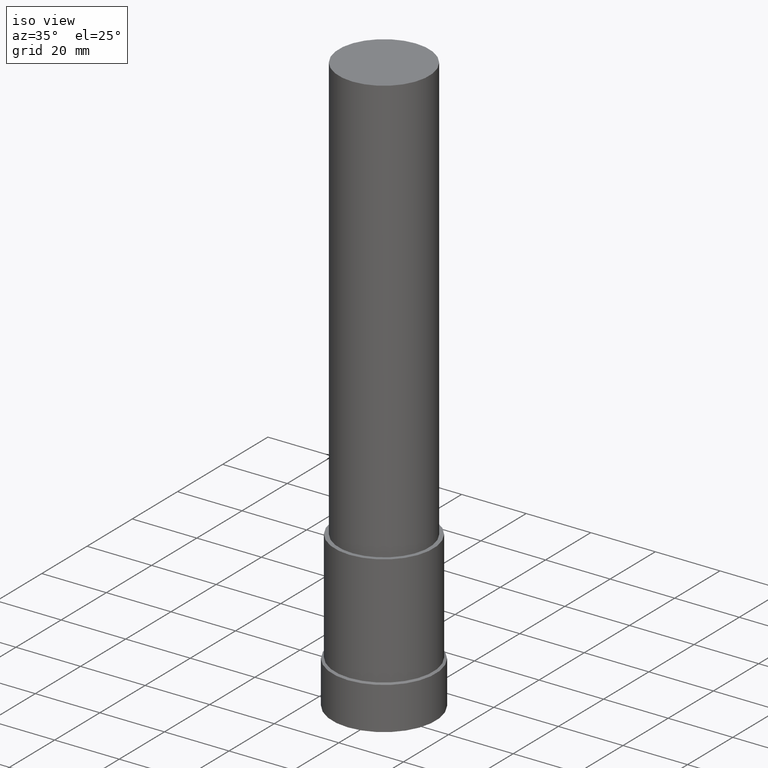
[diagram: clean part render]
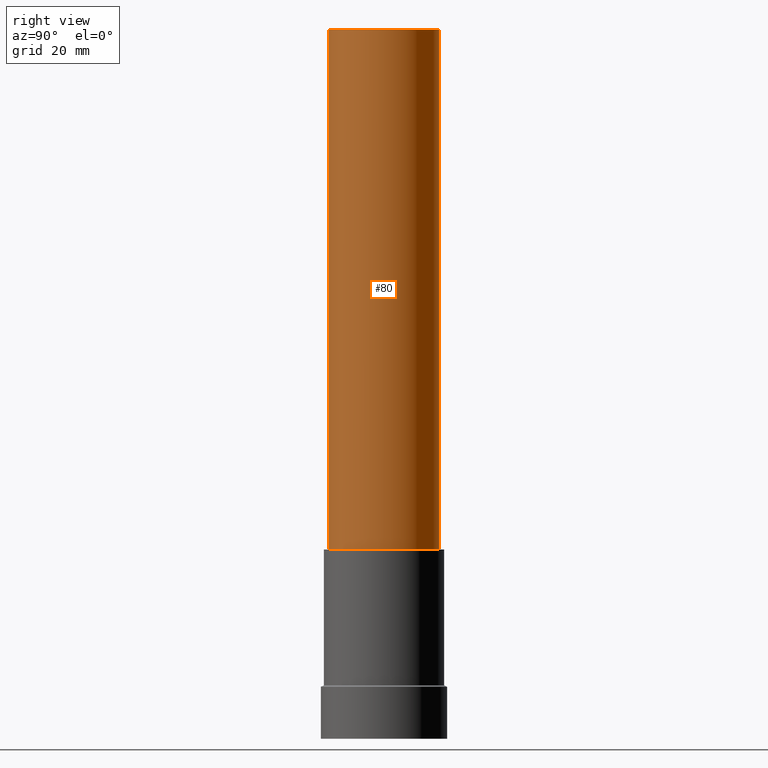
[diagram: tour spotlight — one face highlighted and labeled with its STEP entity id]
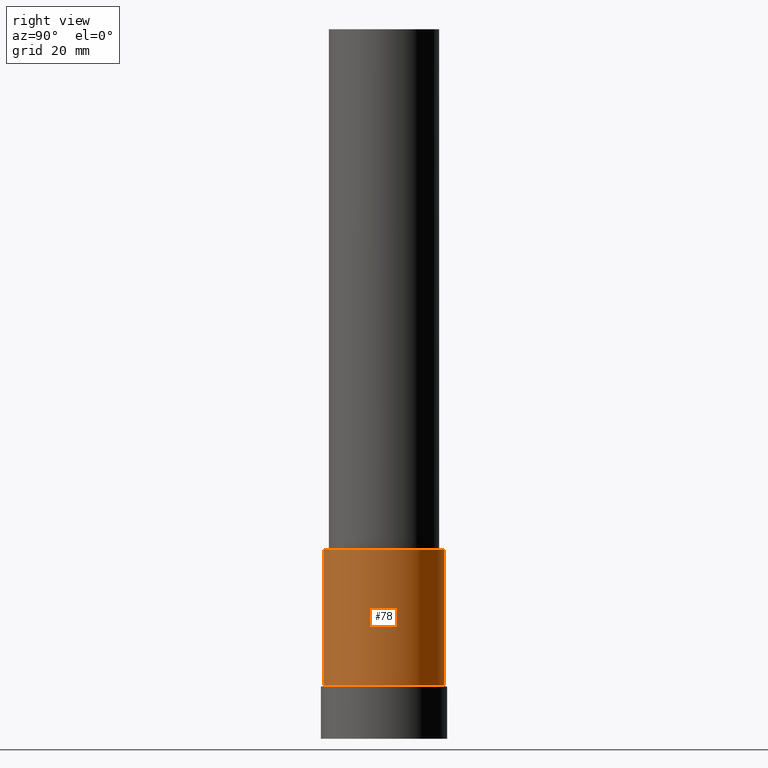
[diagram: tour spotlight — one face highlighted and labeled with its STEP entity id]
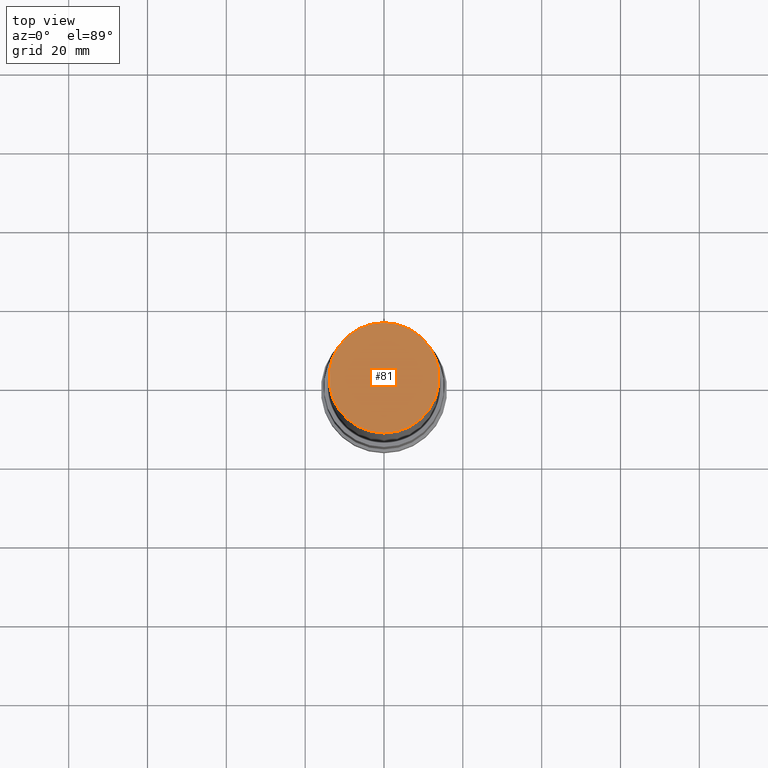
[diagram: tour spotlight — one face highlighted and labeled with its STEP entity id]
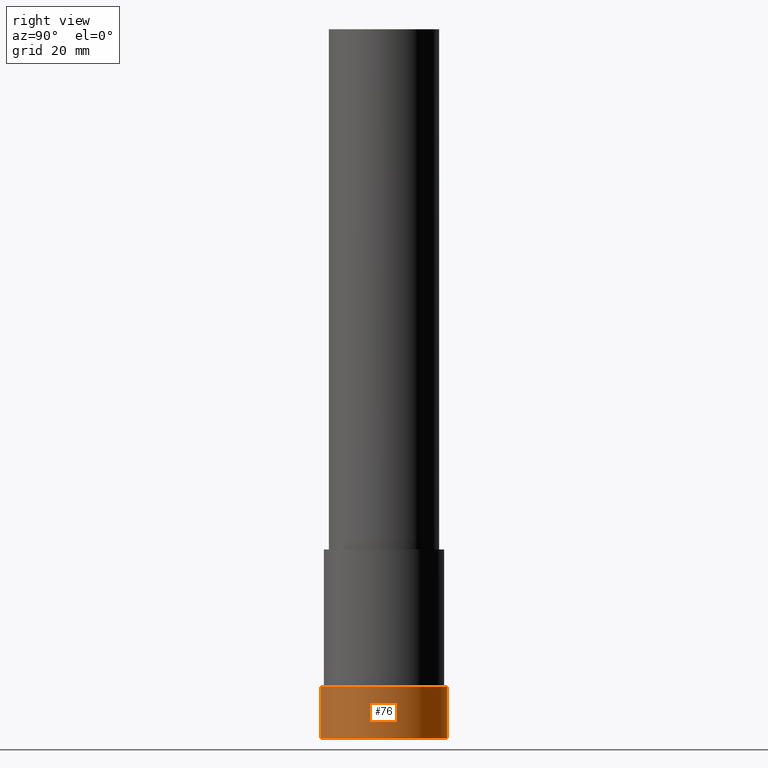
[diagram: tour spotlight — one face highlighted and labeled with its STEP entity id]
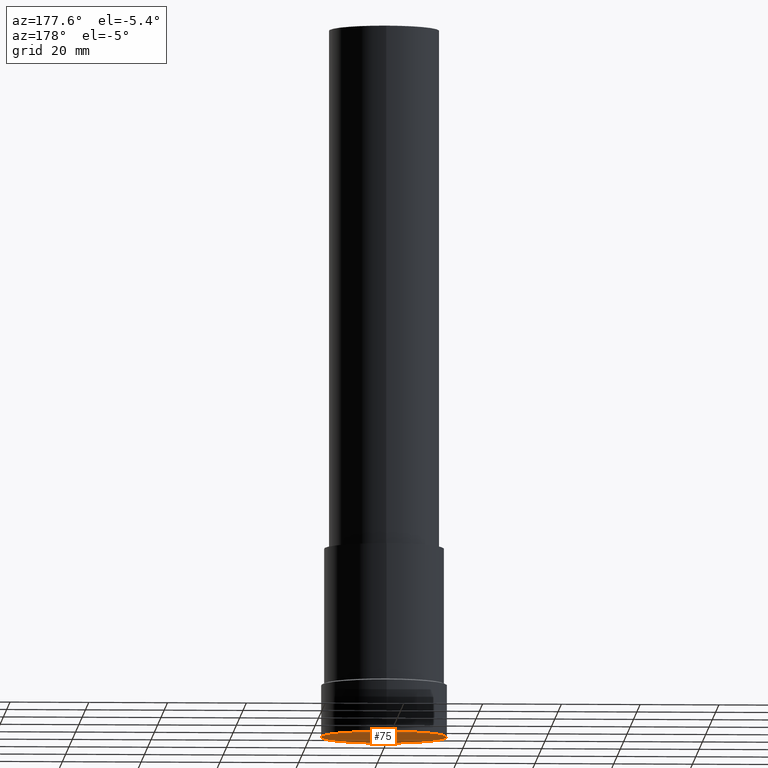
[diagram: tour spotlight — one face highlighted and labeled with its STEP entity id]
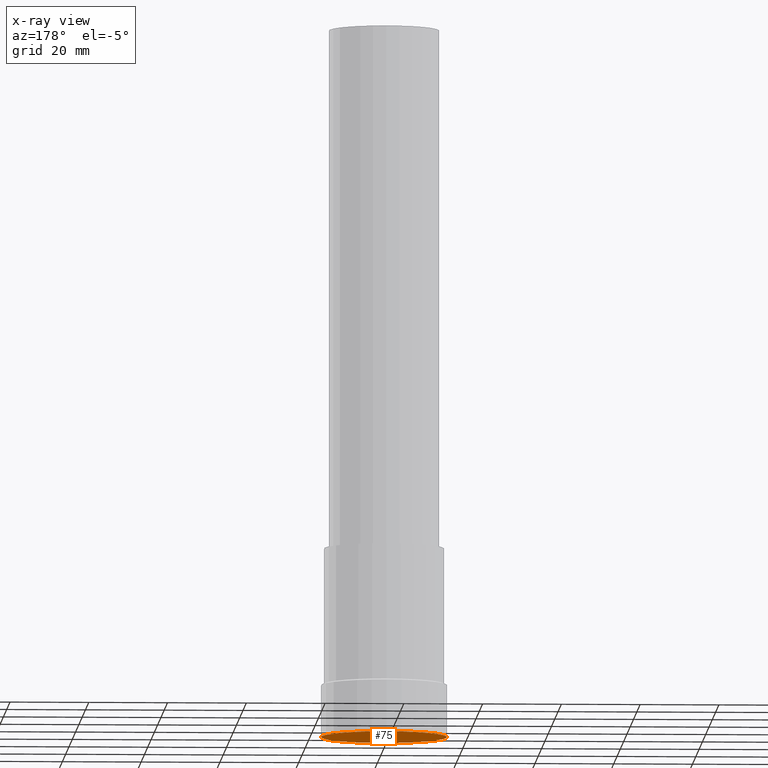
[diagram: x-ray of the same camera — body ghosted, this tour face saturated]
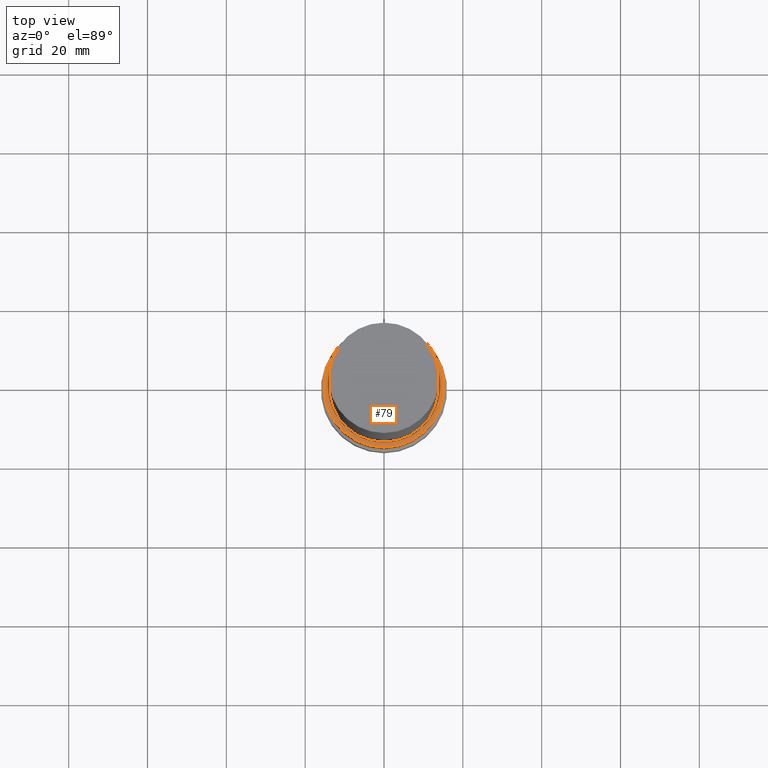
[diagram: tour spotlight — one face highlighted and labeled with its STEP entity id]
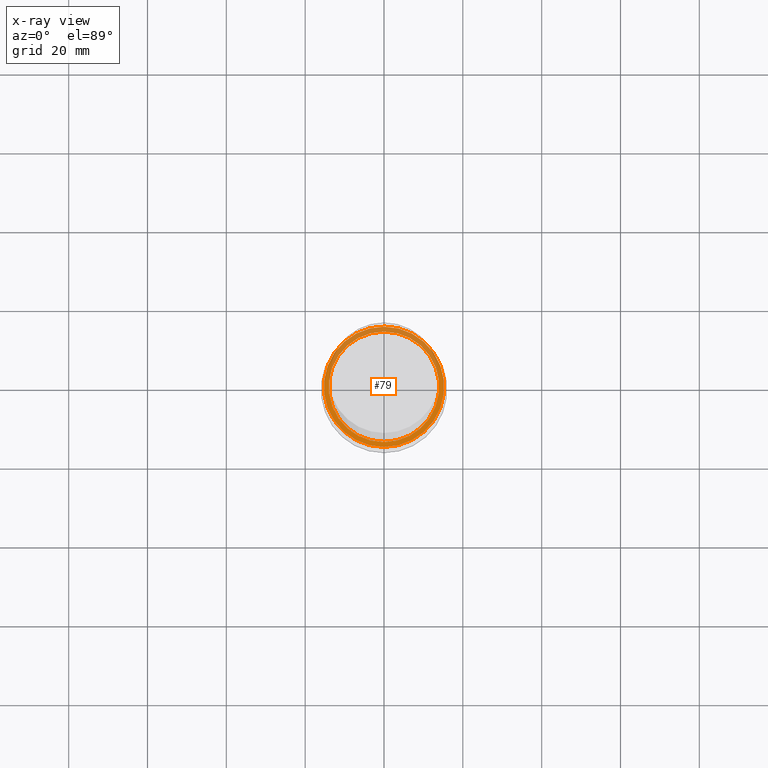
[diagram: x-ray of the same camera — body ghosted, this tour face saturated]
A machine part: a face-by-face anatomy tour. The part has 7 B-rep faces; the first image is the clean iso view, then the 6 largest visible faces are spotlighted one at a time (largest first), each with its STEP entity span.

Face 1 — right view, entity #80. In plain terms, the highlighted cylindrical surface (bore or boss wall) has radius 14 mm, axis along (0, 0, -1).
Definition (entity closure, byte-faithful):
#80=ADVANCED_FACE('',(#97,#98),#99,.T.);
#97=FACE_BOUND('',#116,.T.);
#98=FACE_BOUND('',#117,.T.);
#99=CYLINDRICAL_SURFACE('',#118,14.0000000000002);
#116=EDGE_LOOP('',(#145));
#117=EDGE_LOOP('',(#146));
#118=AXIS2_PLACEMENT_3D('',#147,#148,#149);
#145=ORIENTED_EDGE('',*,*,#159,.F.);
#146=ORIENTED_EDGE('',*,*,#158,.T.);
#147=CARTESIAN_POINT('',(-6.9804867551395E-015,-8.23651766947626E-018,113.999999999993));
#148=DIRECTION('',(6.12323399573676E-017,7.22501549961302E-020,-1.0));
#149=DIRECTION('',(-4.83157677681989E-033,1.0,7.22501549961302E-020));
#158=EDGE_CURVE('',#168,#168,#169,.T.);
#159=EDGE_CURVE('',#170,#170,#171,.T.);
#168=VERTEX_POINT('',#180);
#169=CIRCLE('',#181,14.0000000000007);
#170=VERTEX_POINT('',#182);
#171=CIRCLE('',#183,13.9999999999998);
#180=CARTESIAN_POINT('',(-2.93915231795262E-015,14.0000000000007,47.9999999999833));
#181=AXIS2_PLACEMENT_3D('',#196,#197,#198);
#182=CARTESIAN_POINT('',(-1.10218211923264E-014,13.9999999999998,180.000000000003));
#183=AXIS2_PLACEMENT_3D('',#199,#200,#201);
#196=CARTESIAN_POINT('',(-2.93915231795262E-015,-3.46800743977915E-018,47.9999999999833));
#197=DIRECTION('',(-6.12323399573677E-017,-7.22501549961279E-020,1.0));
#198=DIRECTION('',(-4.83157677682294E-033,1.0,7.22501549961279E-020));
#199=CARTESIAN_POINT('',(-1.10218211923264E-014,-1.30050278991734E-017,180.000000000003));
#200=DIRECTION('',(-6.12323399573677E-017,-7.22501549961324E-020,1.0));
#201=DIRECTION('',(-4.83157677682004E-033,1.0,7.22501549961324E-020));

Face 2 — right view, entity #78. In plain terms, the highlighted cylindrical surface (bore or boss wall) has radius 15.25 mm, axis along (0, 0, -1).
Definition (entity closure, byte-faithful):
#78=ADVANCED_FACE('',(#91,#92),#93,.T.);
#91=FACE_BOUND('',#110,.T.);
#92=FACE_BOUND('',#111,.T.);
#93=CYLINDRICAL_SURFACE('',#112,15.2499999999998);
#110=EDGE_LOOP('',(#135));
#111=EDGE_LOOP('',(#136));
#112=AXIS2_PLACEMENT_3D('',#137,#138,#139);
#135=ORIENTED_EDGE('',*,*,#157,.F.);
#136=ORIENTED_EDGE('',*,*,#156,.T.);
#137=CARTESIAN_POINT('',(-1.884099367798E-015,-2.2231139859269E-018,30.7696777407131));
#138=DIRECTION('',(6.12323399573677E-017,7.22501550150502E-020,-1.0));
#139=DIRECTION('',(-4.83157677682077E-033,1.0,7.22501550150502E-020));
#156=EDGE_CURVE('',#164,#164,#165,.T.);
#157=EDGE_CURVE('',#166,#166,#167,.T.);
#164=VERTEX_POINT('',#176);
#165=CIRCLE('',#177,15.2499999999999);
#166=VERTEX_POINT('',#178);
#167=CIRCLE('',#179,15.2499999999997);
#176=CARTESIAN_POINT('',(-8.29046417643416E-016,15.2499999999999,13.5393554814438));
#177=AXIS2_PLACEMENT_3D('',#190,#191,#192);
#178=CARTESIAN_POINT('',(-2.93915231795258E-015,15.2499999999997,47.9999999999825));
#179=AXIS2_PLACEMENT_3D('',#193,#194,#195);
#190=CARTESIAN_POINT('',(-8.29046417643416E-016,-9.78220532071488E-019,13.5393554814438));
#191=DIRECTION('',(-6.12323399573677E-017,-7.22501550150497E-020,1.0));
#192=DIRECTION('',(-4.83157677682073E-033,1.0,7.22501550150497E-020));
#193=CARTESIAN_POINT('',(-2.93915231795258E-015,-3.46800743977915E-018,47.9999999999825));
#194=DIRECTION('',(-6.12323399573677E-017,-7.22501550150508E-020,1.0));
#195=DIRECTION('',(-4.83157677682374E-033,1.0,7.22501550150508E-020));

Face 3 — top view, entity #81. In plain terms, the highlighted planar face has unit normal (-0, 0, 1).
Definition (entity closure, byte-faithful):
#81=ADVANCED_FACE('',(#100),#101,.T.);
#100=FACE_OUTER_BOUND('',#119,.T.);
#101=PLANE('',#120);
#119=EDGE_LOOP('',(#150));
#120=AXIS2_PLACEMENT_3D('',#151,#152,#153);
#150=ORIENTED_EDGE('',*,*,#159,.T.);
#151=CARTESIAN_POINT('',(-1.10218211923264E-014,6.9999999999999,180.000000000003));
#152=DIRECTION('',(-6.12323399573677E-017,8.91821034370993E-016,1.0));
#153=DIRECTION('',(4.97811360269669E-032,1.0,-8.91821034370993E-016));
#159=EDGE_CURVE('',#170,#170,#171,.T.);
#170=VERTEX_POINT('',#182);
#171=CIRCLE('',#183,13.9999999999998);
#182=CARTESIAN_POINT('',(-1.10218211923264E-014,13.9999999999998,180.000000000003));
#183=AXIS2_PLACEMENT_3D('',#199,#200,#201);
#199=CARTESIAN_POINT('',(-1.10218211923264E-014,-1.30050278991734E-017,180.000000000003));
#200=DIRECTION('',(-6.12323399573677E-017,-7.22501549961324E-020,1.0));
#201=DIRECTION('',(-4.83157677682004E-033,1.0,7.22501549961324E-020));

Face 4 — right view, entity #76. In plain terms, the highlighted cylindrical surface (bore or boss wall) has radius 16 mm, axis along (0, 0, -1).
Definition (entity closure, byte-faithful):
#76=ADVANCED_FACE('',(#85,#86),#87,.T.);
#85=FACE_BOUND('',#104,.T.);
#86=FACE_BOUND('',#105,.T.);
#87=CYLINDRICAL_SURFACE('',#106,15.9999999999999);
#104=EDGE_LOOP('',(#125));
#105=EDGE_LOOP('',(#126));
#106=AXIS2_PLACEMENT_3D('',#127,#128,#129);
#125=ORIENTED_EDGE('',*,*,#155,.F.);
#126=ORIENTED_EDGE('',*,*,#154,.T.);
#127=CARTESIAN_POINT('',(-4.04118971363186E-016,-4.7683394653635E-019,6.59976364849931));
#128=DIRECTION('',(6.12323399573677E-017,7.22501549744944E-020,-1.0));
#129=DIRECTION('',(-4.8315767768228E-033,1.0,7.22501549744944E-020));
#154=EDGE_CURVE('',#160,#160,#161,.T.);
#155=EDGE_CURVE('',#162,#162,#163,.T.);
#160=VERTEX_POINT('',#172);
#161=CIRCLE('',#173,15.9999999999998);
#162=VERTEX_POINT('',#174);
#163=CIRCLE('',#175,16.0);
#172=CARTESIAN_POINT('',(0.0,15.9999999999998,0.0));
#173=AXIS2_PLACEMENT_3D('',#184,#185,#186);
#174=CARTESIAN_POINT('',(-8.08237942726375E-016,16.0,13.1995272969986));
#175=AXIS2_PLACEMENT_3D('',#187,#188,#189);
#184=CARTESIAN_POINT('',(0.0,0.0,0.0));
#185=DIRECTION('',(-6.12323399573677E-017,-7.22501549744948E-020,1.0));
#186=DIRECTION('',(-4.83157677682282E-033,1.0,7.22501549744948E-020));
#187=CARTESIAN_POINT('',(-8.08237942726375E-016,-9.53667893072701E-019,13.1995272969986));
#188=DIRECTION('',(-6.12323399573676E-017,-7.2250154974494E-020,1.0));
#189=DIRECTION('',(-4.83157677681997E-033,1.0,7.2250154974494E-020));

Face 5 — auxiliary view, entity #75. An x-ray twin of the same camera follows (body ghosted, this face saturated) — the face is partly hidden behind the body. In plain terms, the highlighted planar face has unit normal (0, -0, -1).
Definition (entity closure, byte-faithful):
#75=ADVANCED_FACE('',(#83),#84,.T.);
#83=FACE_OUTER_BOUND('',#102,.T.);
#84=PLANE('',#103);
#102=EDGE_LOOP('',(#121));
#103=AXIS2_PLACEMENT_3D('',#122,#123,#124);
#121=ORIENTED_EDGE('',*,*,#154,.F.);
#122=CARTESIAN_POINT('',(-1.088628049205E-028,7.99999999999992,1.79056769411545E-012));
#123=DIRECTION('',(6.12323399573677E-017,-2.25474853923919E-013,-1.0));
#124=DIRECTION('',(-1.38015257545765E-029,-1.0,2.25474853923919E-013));
#154=EDGE_CURVE('',#160,#160,#161,.T.);
#160=VERTEX_POINT('',#172);
#161=CIRCLE('',#173,15.9999999999998);
#172=CARTESIAN_POINT('',(0.0,15.9999999999998,0.0));
#173=AXIS2_PLACEMENT_3D('',#184,#185,#186);
#184=CARTESIAN_POINT('',(0.0,0.0,0.0));
#185=DIRECTION('',(-6.12323399573677E-017,-7.22501549744948E-020,1.0));
#186=DIRECTION('',(-4.83157677682282E-033,1.0,7.22501549744948E-020));

Face 6 — top view, entity #79. An x-ray twin of the same camera follows (body ghosted, this face saturated) — the face is partly hidden behind the body. In plain terms, the highlighted planar face has unit normal (-0, 0, 1).
Definition (entity closure, byte-faithful):
#79=ADVANCED_FACE('',(#94,#95),#96,.T.);
#94=FACE_BOUND('',#113,.T.);
#95=FACE_OUTER_BOUND('',#114,.T.);
#96=PLANE('',#115);
#113=EDGE_LOOP('',(#140));
#114=EDGE_LOOP('',(#141));
#115=AXIS2_PLACEMENT_3D('',#142,#143,#144);
#140=ORIENTED_EDGE('',*,*,#158,.F.);
#141=ORIENTED_EDGE('',*,*,#157,.T.);
#142=CARTESIAN_POINT('',(-2.9391523179526E-015,14.6250000000002,47.9999999999829));
#143=DIRECTION('',(-6.12323399573677E-017,6.3652382656164E-013,1.0));
#144=DIRECTION('',(3.89710161862561E-029,1.0,-6.3652382656164E-013));
#157=EDGE_CURVE('',#166,#166,#167,.T.);
#158=EDGE_CURVE('',#168,#168,#169,.T.);
#166=VERTEX_POINT('',#178);
#167=CIRCLE('',#179,15.2499999999997);
#168=VERTEX_POINT('',#180);
#169=CIRCLE('',#181,14.0000000000007);
#178=CARTESIAN_POINT('',(-2.93915231795258E-015,15.2499999999997,47.9999999999825));
#179=AXIS2_PLACEMENT_3D('',#193,#194,#195);
#180=CARTESIAN_POINT('',(-2.93915231795262E-015,14.0000000000007,47.9999999999833));
#181=AXIS2_PLACEMENT_3D('',#196,#197,#198);
#193=CARTESIAN_POINT('',(-2.93915231795258E-015,-3.46800743977915E-018,47.9999999999825));
#194=DIRECTION('',(-6.12323399573677E-017,-7.22501550150508E-020,1.0));
#195=DIRECTION('',(-4.83157677682374E-033,1.0,7.22501550150508E-020));
#196=CARTESIAN_POINT('',(-2.93915231795262E-015,-3.46800743977915E-018,47.9999999999833));
#197=DIRECTION('',(-6.12323399573677E-017,-7.22501549961279E-020,1.0));
#198=DIRECTION('',(-4.83157677682294E-033,1.0,7.22501549961279E-020));